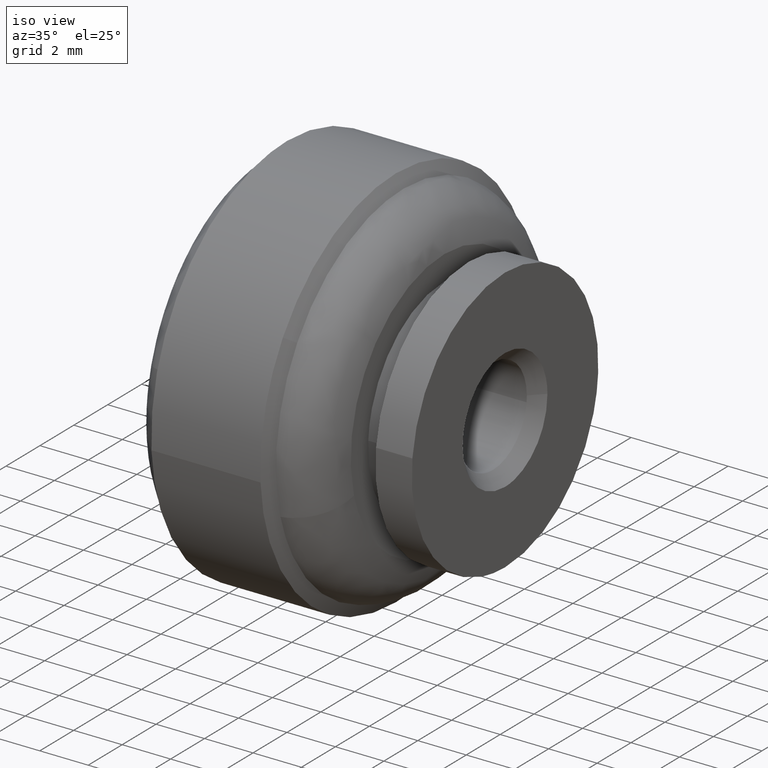
[diagram: clean part render]
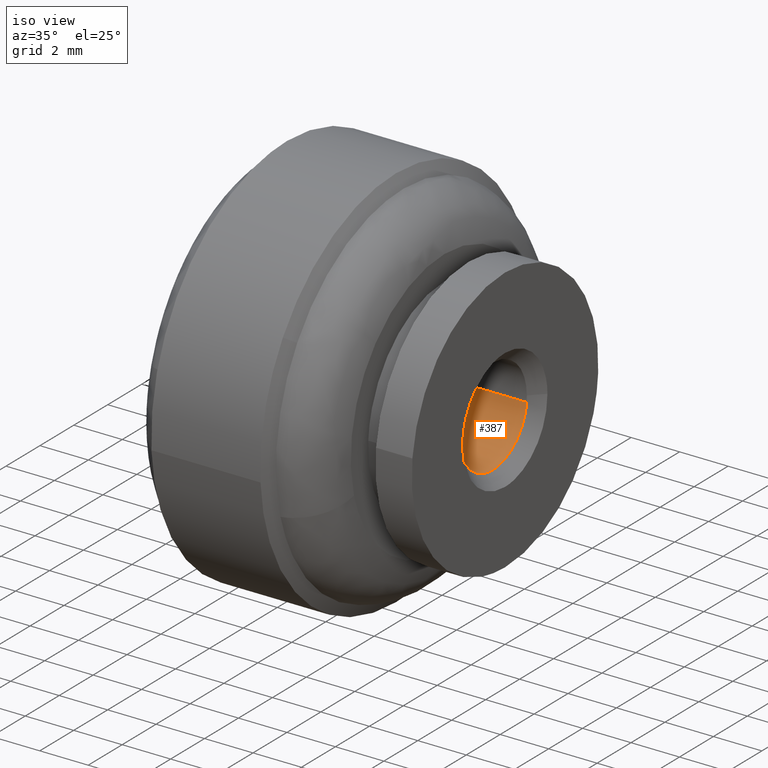
[diagram: same view with one face highlighted and labeled with its STEP entity id]
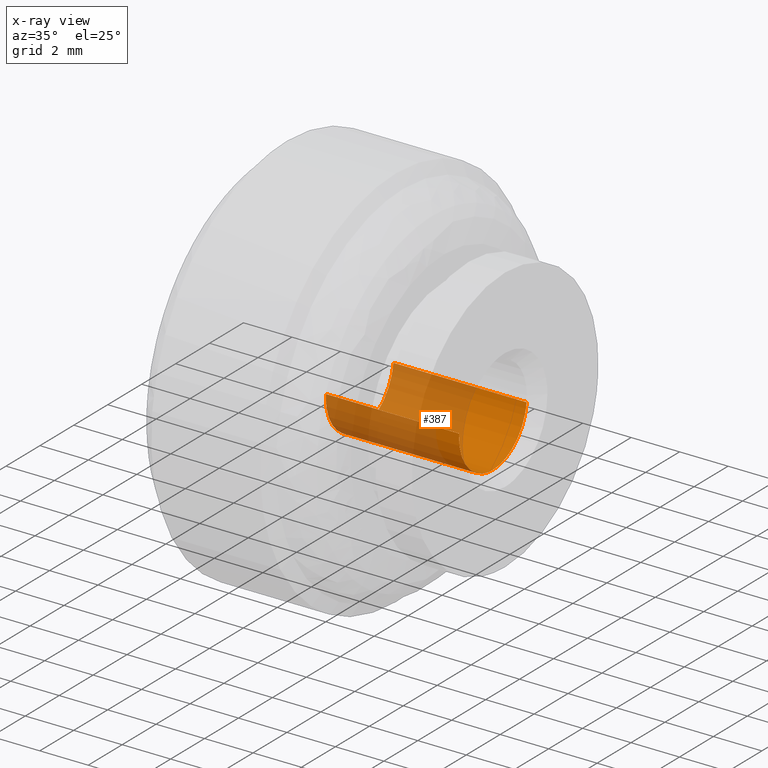
[diagram: x-ray of the same camera — body ghosted, the highlighted face saturated]
A machine part, iso view. The second image highlights one B-rep face of the part: STEP entity #387.
The next image is the same camera in x-ray: the body ghosted, the highlighted face saturated — about 63% of this face is hidden behind the body in this view.
In plain terms, the highlighted face is a freeform B-spline surface patch.
Its self-contained STEP definition (entity closure, byte-faithful):
#150=CARTESIAN_POINT('',(-0.499999999999945,1.986019320010124,-0.236066220669957));
#151=VERTEX_POINT('',#150);
#167=CARTESIAN_POINT('',(-0.499999999999945,0.0,-2.0));
#168=VERTEX_POINT('',#167);
#169=CARTESIAN_POINT('',(-0.499999999999945,0.0,-2.0));
#170=CARTESIAN_POINT('',(-0.499999999999945,1.776351077309530,-2.000000000000000));
#171=CARTESIAN_POINT('',(-0.499999999999945,1.986019320010124,-0.236066220669957));
#179=(BOUNDED_CURVE()B_SPLINE_CURVE(2,(#169,#170,#171),.UNSPECIFIED.,.F.,.U.)B_SPLINE_CURVE_WITH_KNOTS((3,3),(0.0,0.229562664867330),.UNSPECIFIED.)CURVE()GEOMETRIC_REPRESENTATION_ITEM()RATIONAL_B_SPLINE_CURVE((1.0,0.731050608670456,0.956027129245364))REPRESENTATION_ITEM(''));
#180=EDGE_CURVE('',#168,#151,#179,.T.);
#182=CARTESIAN_POINT('',(-0.499999999999945,-1.996269596843233,0.122097079077906));
#183=VERTEX_POINT('',#182);
#184=CARTESIAN_POINT('',(-0.499999999999945,-1.996269596843233,0.122097079077906));
#185=CARTESIAN_POINT('',(-0.499999999999945,-2.000000000000000,0.061105526605392));
#186=CARTESIAN_POINT('',(-0.499999999999945,-2.0,0.0));
#187=CARTESIAN_POINT('',(-0.499999999999945,-2.000000000000000,-2.000000000000000));
#188=CARTESIAN_POINT('',(-0.499999999999945,0.0,-2.0));
#196=(BOUNDED_CURVE()B_SPLINE_CURVE(2,(#184,#185,#186,#187,#188),.UNSPECIFIED.,.F.,.U.)B_SPLINE_CURVE_WITH_KNOTS((3,2,3),(0.739332962240552,0.750000000000000,1.0),.UNSPECIFIED.)CURVE()GEOMETRIC_REPRESENTATION_ITEM()RATIONAL_B_SPLINE_CURVE((0.976072041670167,0.987502787901723,1.0,0.707106781186548,1.0))REPRESENTATION_ITEM(''));
#197=EDGE_CURVE('',#183,#168,#196,.T.);
#282=CARTESIAN_POINT('',(-6.000000000000012,1.986019323275202,-0.236066193200663));
#283=VERTEX_POINT('',#282);
#301=CARTESIAN_POINT('',(-6.000000000000012,1.986019323275202,-0.236066193200663));
#302=CARTESIAN_POINT('',(-0.499999999999945,1.986019320010124,-0.236066220669957));
#303=QUASI_UNIFORM_CURVE('',1,(#301,#302),.UNSPECIFIED.,.F.,.U.);
#304=EDGE_CURVE('',#283,#151,#303,.T.);
#310=CARTESIAN_POINT('',(-6.0,-1.996269596843233,0.122097079077905));
#311=VERTEX_POINT('',#310);
#312=CARTESIAN_POINT('',(-6.0,-1.996269596843233,0.122097079077905));
#313=CARTESIAN_POINT('',(-0.499999999999945,-1.996269596843233,0.122097079077906));
#314=QUASI_UNIFORM_CURVE('',1,(#312,#313),.UNSPECIFIED.,.F.,.U.);
#315=EDGE_CURVE('',#311,#183,#314,.T.);
#333=CARTESIAN_POINT('',(-6.137500000000003,-1.996269596843733,0.122097079069714));
#334=CARTESIAN_POINT('',(-6.137500000000003,-2.118366675913447,-1.874172517774020));
#335=CARTESIAN_POINT('',(-6.137500000000003,-0.122097079069714,-1.996269596843733));
#336=CARTESIAN_POINT('',(-6.137500000000004,1.763086981679002,-2.111572393465055));
#337=CARTESIAN_POINT('',(-6.137500000000004,1.986019052727332,-0.236068469313517));
#338=CARTESIAN_POINT('',(-0.359062499999943,-1.996269596843733,0.122097079069714));
#339=CARTESIAN_POINT('',(-0.359062499999943,-2.118366675913447,-1.874172517774020));
#340=CARTESIAN_POINT('',(-0.359062499999943,-0.122097079069714,-1.996269596843733));
#341=CARTESIAN_POINT('',(-0.359062499999943,1.763086981679002,-2.111572393465055));
#342=CARTESIAN_POINT('',(-0.359062499999943,1.986019052727332,-0.236068469313517));
#350=(BOUNDED_SURFACE()B_SPLINE_SURFACE(2,1,((#333,#338),(#334,#339),(#335,#340),(#336,#341),(#337,#342)),.UNSPECIFIED.,.F.,.F.,.U.)B_SPLINE_SURFACE_WITH_KNOTS((3,2,3),(2,2),(0.0,3.313708498984759,6.494868658010128),(0.0,5.778437500000060),.UNSPECIFIED.)GEOMETRIC_REPRESENTATION_ITEM()RATIONAL_B_SPLINE_SURFACE(((1.0,1.0),(0.707106781186548,0.707106781186548),(1.0,1.0),(0.718822509939086,0.718822509939086),(0.977505800795127,0.977505800795127)))REPRESENTATION_ITEM('')SURFACE());
#351=CARTESIAN_POINT('',(-6.0,0.0,-2.0));
#352=VERTEX_POINT('',#351);
#353=CARTESIAN_POINT('',(-6.0,0.0,-2.0));
#354=CARTESIAN_POINT('',(-6.0,1.776351102051785,-2.000000000000000));
#355=CARTESIAN_POINT('',(-6.000000000000012,1.986019323275202,-0.236066193200663));
#363=(BOUNDED_CURVE()B_SPLINE_CURVE(2,(#353,#354,#355),.UNSPECIFIED.,.F.,.U.)B_SPLINE_CURVE_WITH_KNOTS((3,3),(0.500000000000000,0.729562667204871),.UNSPECIFIED.)CURVE()GEOMETRIC_REPRESENTATION_ITEM()RATIONAL_B_SPLINE_CURVE((1.0,0.731050605931856,0.956027133827048))REPRESENTATION_ITEM(''));
#364=EDGE_CURVE('',#352,#283,#363,.T.);
#365=ORIENTED_EDGE('',*,*,#364,.F.);
#366=CARTESIAN_POINT('',(-6.0,-1.996269596843232,0.122097079077905));
#367=CARTESIAN_POINT('',(-6.0,-2.0,0.061105526605392));
#368=CARTESIAN_POINT('',(-6.0,-2.0,0.0));
#369=CARTESIAN_POINT('',(-6.0,-2.000000000000000,-2.000000000000000));
#370=CARTESIAN_POINT('',(-6.0,0.0,-2.0));
#378=(BOUNDED_CURVE()B_SPLINE_CURVE(2,(#366,#367,#368,#369,#370),.UNSPECIFIED.,.F.,.U.)B_SPLINE_CURVE_WITH_KNOTS((3,2,3),(0.239332962240552,0.250000000000000,0.500000000000000),.UNSPECIFIED.)CURVE()GEOMETRIC_REPRESENTATION_ITEM()RATIONAL_B_SPLINE_CURVE((0.976072041670167,0.987502787901723,1.0,0.707106781186548,1.0))REPRESENTATION_ITEM(''));
#379=EDGE_CURVE('',#311,#352,#378,.T.);
#380=ORIENTED_EDGE('',*,*,#379,.F.);
#381=ORIENTED_EDGE('',*,*,#315,.T.);
#382=ORIENTED_EDGE('',*,*,#197,.T.);
#383=ORIENTED_EDGE('',*,*,#180,.T.);
#384=ORIENTED_EDGE('',*,*,#304,.F.);
#385=EDGE_LOOP('',(#365,#380,#381,#382,#383,#384));
#386=FACE_OUTER_BOUND('',#385,.T.);
#387=ADVANCED_FACE('',(#386),#350,.F.);